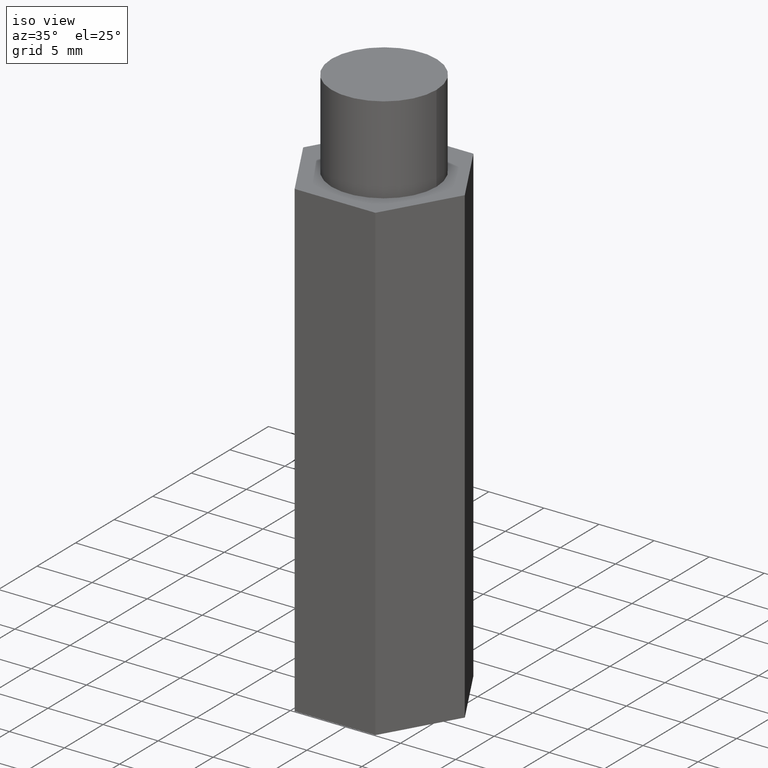
[diagram: clean part render]
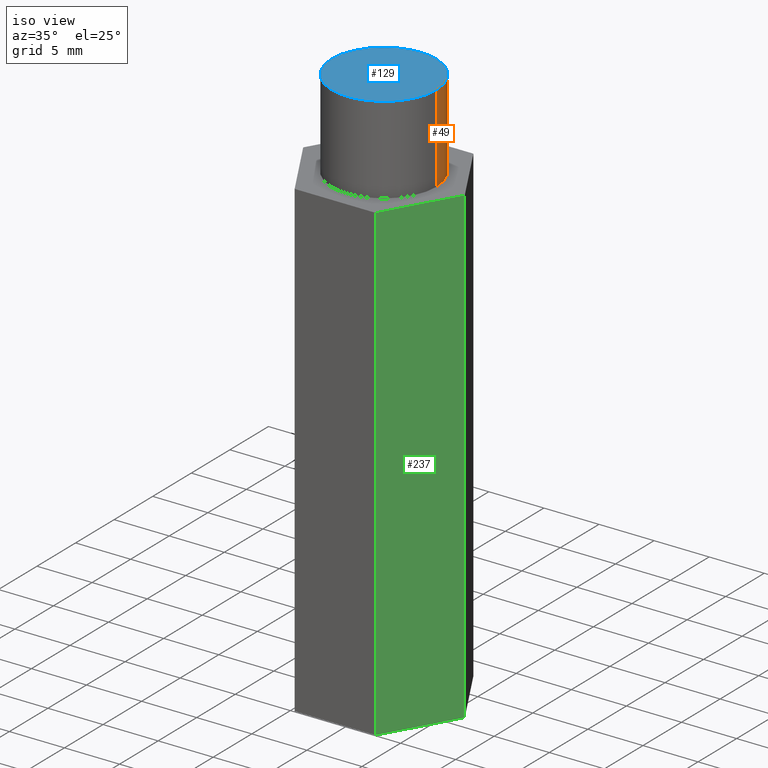
[diagram: same view with three faces highlighted in distinct colors, each labeled with its STEP entity id]
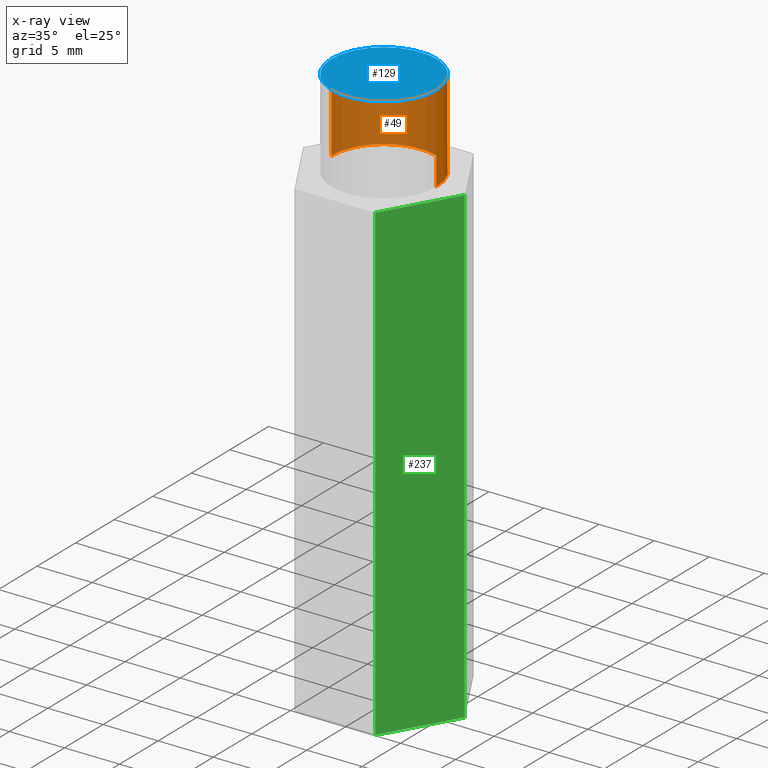
[diagram: x-ray of the same camera — body ghosted, the three highlighted faces saturated]
A machine part, iso view with three faces highlighted in distinct colors.
The next image is the same camera in x-ray (body ghosted, the three faces saturated) — at least one of them is partly hidden behind the body in this view.
Their STEP definitions:

[orange] entity #49 — the highlighted cylindrical surface (partial cylindrical patch) has radius 4.76 mm, axis along (-0, -0, -1).
#21 = CARTESIAN_POINT ( 'NONE',  ( 0.0000000000000000000, 0.0000000000000000000, 2.000000000000000000 ) ) ;
#22 = CIRCLE ( 'NONE', #253, 0.1873999999999999800 ) ;
#29 = CARTESIAN_POINT ( 'NONE',  ( -0.1873999999999999800, 0.0000000000000000000, 1.687000000000000100 ) ) ;
#35 = DIRECTION ( 'NONE',  ( 0.0000000000000000000, 0.0000000000000000000, 1.000000000000000000 ) ) ;
#49 = ADVANCED_FACE ( 'NONE', ( #62 ), #205, .T. ) ;
#55 = CARTESIAN_POINT ( 'NONE',  ( -0.1873999999999999800, 0.0000000000000000000, 2.000000000000000000 ) ) ;
#62 = FACE_OUTER_BOUND ( 'NONE', #211, .T. ) ;
#65 = ORIENTED_EDGE ( 'NONE', *, *, #181, .T. ) ;
#79 = CIRCLE ( 'NONE', #232, 0.1873999999999999800 ) ;
#87 = VERTEX_POINT ( 'NONE', #136 ) ;
#100 = VERTEX_POINT ( 'NONE', #29 ) ;
#135 = DIRECTION ( 'NONE',  ( -1.000000000000000000, 0.0000000000000000000, 0.0000000000000000000 ) ) ;
#136 = CARTESIAN_POINT ( 'NONE',  ( 0.1873999999999999800, 2.294988101602139800E-017, 1.687000000000000100 ) ) ;
#168 = DIRECTION ( 'NONE',  ( -0.0000000000000000000, -0.0000000000000000000, -1.000000000000000000 ) ) ;
#171 = EDGE_CURVE ( 'NONE', #256, #100, #214, .T. ) ;
#176 = DIRECTION ( 'NONE',  ( 0.0000000000000000000, 0.0000000000000000000, 1.000000000000000000 ) ) ;
#179 = ORIENTED_EDGE ( 'NONE', *, *, #266, .T. ) ;
#181 = EDGE_CURVE ( 'NONE', #316, #87, #267, .T. ) ;
#186 = ORIENTED_EDGE ( 'NONE', *, *, #171, .F. ) ;
#191 = VECTOR ( 'NONE', #168, 39.37007874015748100 ) ;
#205 = CYLINDRICAL_SURFACE ( 'NONE', #354, 0.1873999999999999800 ) ;
#211 = EDGE_LOOP ( 'NONE', ( #290, #65, #179, #186 ) ) ;
#214 = LINE ( 'NONE', #55, #191 ) ;
#217 = CARTESIAN_POINT ( 'NONE',  ( 0.1873999999999999800, 2.294988101602139800E-017, 2.000000000000000000 ) ) ;
#224 = DIRECTION ( 'NONE',  ( 1.000000000000000000, 0.0000000000000000000, 0.0000000000000000000 ) ) ;
#232 = AXIS2_PLACEMENT_3D ( 'NONE', #342, #35, #307 ) ;
#241 = EDGE_CURVE ( 'NONE', #316, #256, #79, .T. ) ;
#253 = AXIS2_PLACEMENT_3D ( 'NONE', #343, #176, #224 ) ;
#256 = VERTEX_POINT ( 'NONE', #284 ) ;
#266 = EDGE_CURVE ( 'NONE', #87, #100, #22, .T. ) ;
#267 = LINE ( 'NONE', #217, #289 ) ;
#275 = DIRECTION ( 'NONE',  ( -0.0000000000000000000, -0.0000000000000000000, -1.000000000000000000 ) ) ;
#282 = CARTESIAN_POINT ( 'NONE',  ( 0.1873999999999999800, 2.294988101602139800E-017, 2.000000000000000000 ) ) ;
#284 = CARTESIAN_POINT ( 'NONE',  ( -0.1873999999999999800, 0.0000000000000000000, 2.000000000000000000 ) ) ;
#289 = VECTOR ( 'NONE', #275, 39.37007874015748100 ) ;
#290 = ORIENTED_EDGE ( 'NONE', *, *, #241, .F. ) ;
#307 = DIRECTION ( 'NONE',  ( 1.000000000000000000, 0.0000000000000000000, 0.0000000000000000000 ) ) ;
#316 = VERTEX_POINT ( 'NONE', #282 ) ;
#326 = DIRECTION ( 'NONE',  ( -0.0000000000000000000, -0.0000000000000000000, -1.000000000000000000 ) ) ;
#342 = CARTESIAN_POINT ( 'NONE',  ( 0.0000000000000000000, 0.0000000000000000000, 2.000000000000000000 ) ) ;
#343 = CARTESIAN_POINT ( 'NONE',  ( 0.0000000000000000000, 0.0000000000000000000, 1.687000000000000100 ) ) ;
#354 = AXIS2_PLACEMENT_3D ( 'NONE', #21, #326, #135 ) ;

[blue] entity #129 — the highlighted planar face has unit normal (0, 0, 1).
#1 = DIRECTION ( 'NONE',  ( 1.000000000000000000, 0.0000000000000000000, 0.0000000000000000000 ) ) ;
#25 = AXIS2_PLACEMENT_3D ( 'NONE', #160, #355, #1 ) ;
#35 = DIRECTION ( 'NONE',  ( 0.0000000000000000000, 0.0000000000000000000, 1.000000000000000000 ) ) ;
#48 = EDGE_CURVE ( 'NONE', #256, #316, #107, .T. ) ;
#56 = DIRECTION ( 'NONE',  ( 1.000000000000000000, 0.0000000000000000000, -0.0000000000000000000 ) ) ;
#57 = PLANE ( 'NONE',  #97 ) ;
#79 = CIRCLE ( 'NONE', #232, 0.1873999999999999800 ) ;
#97 = AXIS2_PLACEMENT_3D ( 'NONE', #109, #298, #56 ) ;
#107 = CIRCLE ( 'NONE', #25, 0.1873999999999999800 ) ;
#109 = CARTESIAN_POINT ( 'NONE',  ( 0.0000000000000000000, 0.0000000000000000000, 2.000000000000000000 ) ) ;
#123 = ORIENTED_EDGE ( 'NONE', *, *, #48, .T. ) ;
#129 = ADVANCED_FACE ( 'NONE', ( #274 ), #57, .T. ) ;
#154 = EDGE_LOOP ( 'NONE', ( #123, #246 ) ) ;
#160 = CARTESIAN_POINT ( 'NONE',  ( 0.0000000000000000000, 0.0000000000000000000, 2.000000000000000000 ) ) ;
#232 = AXIS2_PLACEMENT_3D ( 'NONE', #342, #35, #307 ) ;
#241 = EDGE_CURVE ( 'NONE', #316, #256, #79, .T. ) ;
#246 = ORIENTED_EDGE ( 'NONE', *, *, #241, .T. ) ;
#256 = VERTEX_POINT ( 'NONE', #284 ) ;
#274 = FACE_OUTER_BOUND ( 'NONE', #154, .T. ) ;
#282 = CARTESIAN_POINT ( 'NONE',  ( 0.1873999999999999800, 2.294988101602139800E-017, 2.000000000000000000 ) ) ;
#284 = CARTESIAN_POINT ( 'NONE',  ( -0.1873999999999999800, 0.0000000000000000000, 2.000000000000000000 ) ) ;
#298 = DIRECTION ( 'NONE',  ( 0.0000000000000000000, 0.0000000000000000000, 1.000000000000000000 ) ) ;
#307 = DIRECTION ( 'NONE',  ( 1.000000000000000000, 0.0000000000000000000, 0.0000000000000000000 ) ) ;
#316 = VERTEX_POINT ( 'NONE', #282 ) ;
#342 = CARTESIAN_POINT ( 'NONE',  ( 0.0000000000000000000, 0.0000000000000000000, 2.000000000000000000 ) ) ;
#355 = DIRECTION ( 'NONE',  ( 0.0000000000000000000, 0.0000000000000000000, 1.000000000000000000 ) ) ;

[green] entity #237 — the highlighted planar face has unit normal (-0.866, 0.5, 0).
#11 = EDGE_CURVE ( 'NONE', #209, #261, #54, .T. ) ;
#45 = LINE ( 'NONE', #331, #301 ) ;
#50 = CARTESIAN_POINT ( 'NONE',  ( 0.1443375672974065200, -0.2500000000000000600, 0.0000000000000000000 ) ) ;
#54 = LINE ( 'NONE', #50, #111 ) ;
#61 = DIRECTION ( 'NONE',  ( -0.0000000000000000000, -0.0000000000000000000, -1.000000000000000000 ) ) ;
#63 = CARTESIAN_POINT ( 'NONE',  ( 0.2886751345948129200, -7.469896857675719000E-018, 0.0000000000000000000 ) ) ;
#73 = AXIS2_PLACEMENT_3D ( 'NONE', #201, #88, #175 ) ;
#88 = DIRECTION ( 'NONE',  ( -0.8660254037844387100, 0.4999999999999998900, 0.0000000000000000000 ) ) ;
#111 = VECTOR ( 'NONE', #320, 39.37007874015748900 ) ;
#127 = EDGE_CURVE ( 'NONE', #219, #296, #349, .T. ) ;
#133 = ORIENTED_EDGE ( 'NONE', *, *, #11, .T. ) ;
#143 = CARTESIAN_POINT ( 'NONE',  ( 0.2886751345948129200, -7.469896857675719000E-018, 1.687000000000000100 ) ) ;
#147 = EDGE_CURVE ( 'NONE', #296, #261, #45, .T. ) ;
#148 = PLANE ( 'NONE',  #73 ) ;
#153 = FACE_OUTER_BOUND ( 'NONE', #157, .T. ) ;
#157 = EDGE_LOOP ( 'NONE', ( #133, #213, #234, #277 ) ) ;
#162 = VECTOR ( 'NONE', #61, 39.37007874015748100 ) ;
#165 = DIRECTION ( 'NONE',  ( 0.4999999999999998300, 0.8660254037844386000, 0.0000000000000000000 ) ) ;
#170 = CARTESIAN_POINT ( 'NONE',  ( 0.1443375672974065200, -0.2500000000000000600, 1.687000000000000100 ) ) ;
#175 = DIRECTION ( 'NONE',  ( -0.4999999999999998300, -0.8660254037844386000, 0.0000000000000000000 ) ) ;
#201 = CARTESIAN_POINT ( 'NONE',  ( 0.1443375672974065200, -0.2500000000000000600, 1.687000000000000100 ) ) ;
#209 = VERTEX_POINT ( 'NONE', #299 ) ;
#213 = ORIENTED_EDGE ( 'NONE', *, *, #147, .F. ) ;
#218 = LINE ( 'NONE', #170, #162 ) ;
#219 = VERTEX_POINT ( 'NONE', #279 ) ;
#234 = ORIENTED_EDGE ( 'NONE', *, *, #127, .F. ) ;
#237 = ADVANCED_FACE ( 'NONE', ( #153 ), #148, .F. ) ;
#261 = VERTEX_POINT ( 'NONE', #63 ) ;
#271 = CARTESIAN_POINT ( 'NONE',  ( 0.1443375672974065200, -0.2500000000000000600, 1.687000000000000100 ) ) ;
#277 = ORIENTED_EDGE ( 'NONE', *, *, #287, .T. ) ;
#279 = CARTESIAN_POINT ( 'NONE',  ( 0.1443375672974065200, -0.2500000000000000600, 1.687000000000000100 ) ) ;
#287 = EDGE_CURVE ( 'NONE', #219, #209, #218, .T. ) ;
#296 = VERTEX_POINT ( 'NONE', #143 ) ;
#299 = CARTESIAN_POINT ( 'NONE',  ( 0.1443375672974065200, -0.2500000000000000600, 0.0000000000000000000 ) ) ;
#301 = VECTOR ( 'NONE', #330, 39.37007874015748100 ) ;
#320 = DIRECTION ( 'NONE',  ( 0.4999999999999998300, 0.8660254037844386000, 0.0000000000000000000 ) ) ;
#330 = DIRECTION ( 'NONE',  ( -0.0000000000000000000, -0.0000000000000000000, -1.000000000000000000 ) ) ;
#331 = CARTESIAN_POINT ( 'NONE',  ( 0.2886751345948129200, -7.469896857675719000E-018, 1.687000000000000100 ) ) ;
#345 = VECTOR ( 'NONE', #165, 39.37007874015748900 ) ;
#349 = LINE ( 'NONE', #271, #345 ) ;